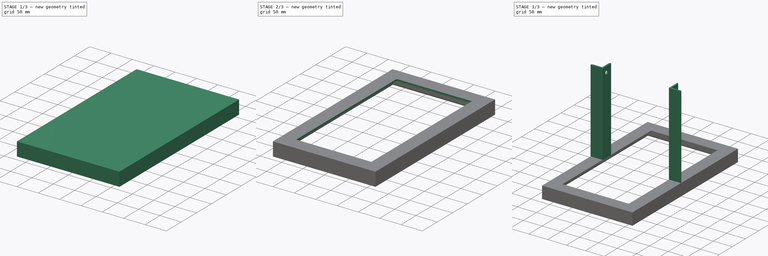
[diagram: build sequence overview — one tinted view per stage of 3, left to right]
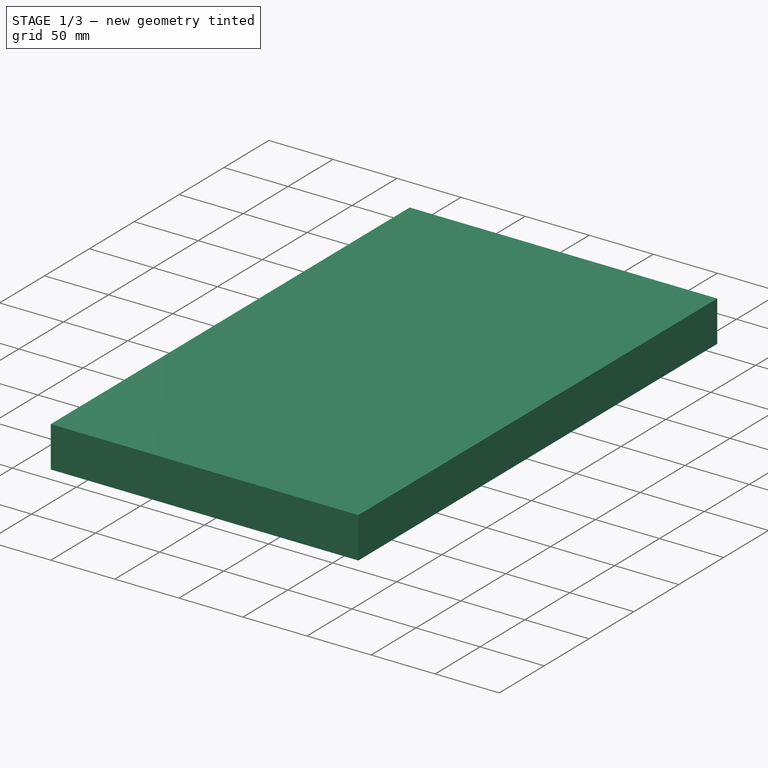
[diagram: stage 1 of 3 — iso view after this stage's code; geometry added in this stage tinted green]
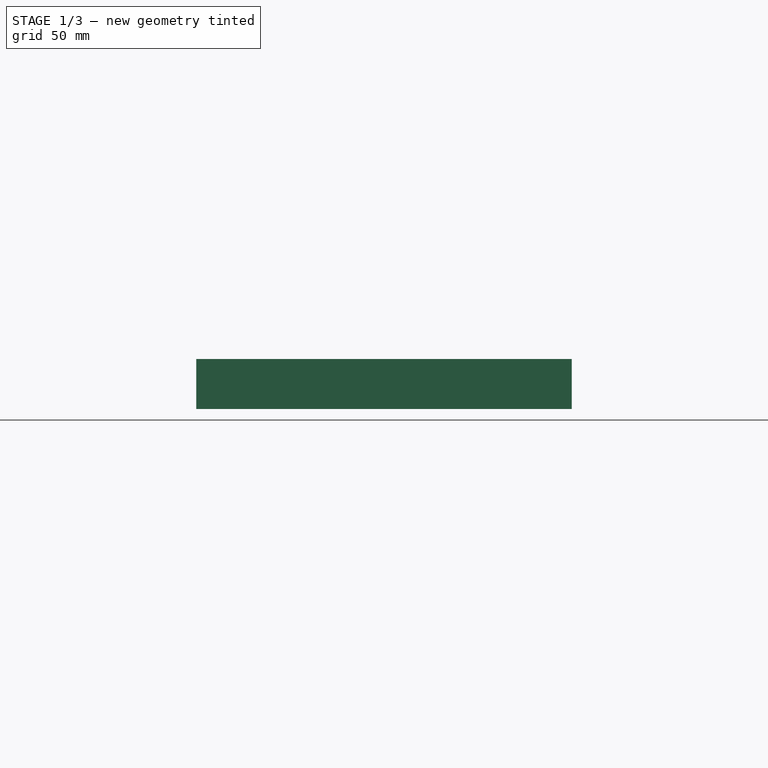
[diagram: stage 1 of 3 — front view after this stage's code; geometry added in this stage tinted green]
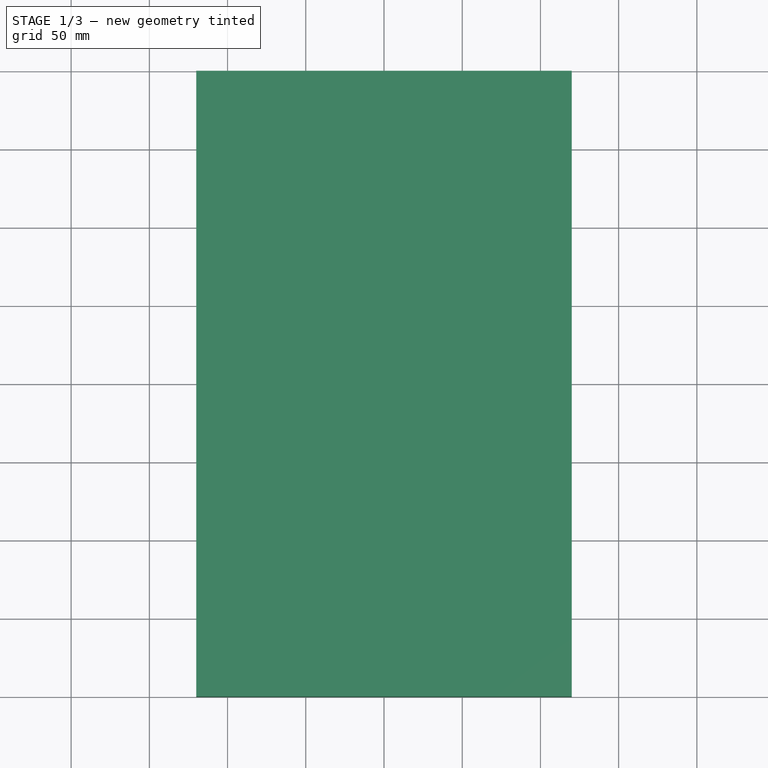
[diagram: stage 1 of 3 — top view after this stage's code; geometry added in this stage tinted green]
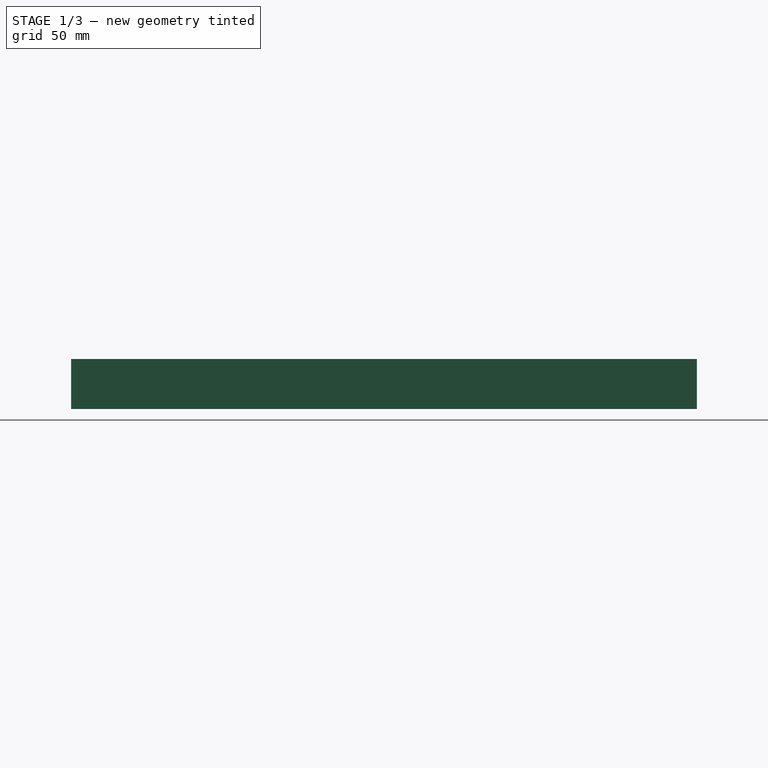
[diagram: stage 1 of 3 — right view after this stage's code; geometry added in this stage tinted green]
FCSTD DOCUMENT  (FreeCAD 0.19R)
Label: stand
License: All rights reserved
LicenseURL: http://en.wikipedia.org/wiki/All_rights_reserved
objects: Sketcher::SketchObject×5, PartDesign::Pad×3, PartDesign::CoordinateSystem×3, PartDesign::Pocket×2, PartDesign::Body×1
note: 19 computed .brp shape members not serialized (recipe doc carries the construction recipe); baked Part::Feature solids carry a one-line shape summary decoded from their .brp

FEATURE [Sketcher::SketchObject] Sketch
  FullyConstrained = true
  MapMode = 5
  Placement = pos=(0,0,0) rot=(1,0,0;1.5708rad)
  Support = -> [XZ_Plane]
  sketch-geometry (8):
    g0: LineSegment StartX=-120 StartY=1.55e-14 StartZ=0 EndX=-120 EndY=32 EndZ=0
    g1: LineSegment StartX=-120 StartY=32 StartZ=0 EndX=120 EndY=32 EndZ=0
    g2: LineSegment StartX=120 StartY=32 StartZ=0 EndX=120 EndY=1.42e-14 EndZ=0
    g3: LineSegment StartX=-116 StartY=4 StartZ=0 EndX=-116 EndY=28 EndZ=0
    g4: LineSegment StartX=-116 StartY=28 StartZ=0 EndX=116 EndY=28 EndZ=0
    g5: LineSegment StartX=116 StartY=28 StartZ=0 EndX=116 EndY=4 EndZ=0
    g6: ArcOfCircle CenterX=-120 CenterY=4 CenterZ=0 NormalX=0 NormalY=0 NormalZ=1 AngleXU=0 Radius=4 StartAngle=4.71239 EndAngle=6.28319
    g7: ArcOfCircle CenterX=120 CenterY=4 CenterZ=0 NormalX=0 NormalY=0 NormalZ=1 AngleXU=0 Radius=4 StartAngle=3.14159 EndAngle=4.71239
  constraints (25):
    c: PointOnObject(g0,g-1)
    c: Vertical(g0)
    c: Coincident(g1,g0)
    c: Horizontal(g1)
    c: Coincident(g2,g1)
    c: Vertical(g2)
    c: DistanceY(g0,g0) = 32
    c: DistanceX(g1,g1) = 240
    c: Symmetric(g2,g0,g-2)
    c: Vertical(g3)
    c: Coincident(g4,g3)
    c: Horizontal(g4)
    c: Coincident(g5,g4)
    c: Vertical(g5)
    c: DistanceX(g0,g3) = 4
    c: DistanceY(g3,g0) = 4
    c: DistanceX(g5,g2) = 4
    c: DistanceY(g3,g3) = 24
    c: Equal(g3,g5)
    c: PointOnObject(g6,g0)
    c: Coincident(g6,g3)
    c: Coincident(g6,g0)
    c: PointOnObject(g7,g2)
    c: Coincident(g7,g5)
    c: Coincident(g7,g2)
FEATURE [PartDesign::Pad] Pad
  Direction = (1,1,1)
  Length = 400
  Length2 = 100
  Placement = pos=(0,0,0) rot=(1,0,0;1.5708rad)
  Profile = -> Sketch
  Type = 0
FEATURE [Sketcher::SketchObject] Sketch001
  ExternalGeometry = -> [Pad]
  FullyConstrained = true
  MapMode = 5
  Placement = pos=(120,0,0) rot=(0.707107,0,0.707107;3.14159rad)
  Support = -> [Pad]
  sketch-geometry (8):
    g0: LineSegment StartX=32 StartY=400 StartZ=0 EndX=1.776e-13 EndY=400 EndZ=0
    g1: LineSegment StartX=4 StartY=396 StartZ=0 EndX=32 EndY=396 EndZ=0
    g2: LineSegment StartX=0 StartY=-1.3e-15 StartZ=0 EndX=32 EndY=0 EndZ=0
    g3: LineSegment StartX=4 StartY=4 StartZ=0 EndX=32 EndY=4 EndZ=0
    g4: LineSegment StartX=32 StartY=0 StartZ=0 EndX=32 EndY=4 EndZ=0
    g5: ArcOfCircle CenterX=4 CenterY=0 CenterZ=0 NormalX=0 NormalY=0 NormalZ=1 AngleXU=0 Radius=4 StartAngle=1.5708 EndAngle=3.14159
    g6: ArcOfCircle CenterX=4 CenterY=400 CenterZ=0 NormalX=0 NormalY=0 NormalZ=1 AngleXU=0 Radius=4 StartAngle=3.14159 EndAngle=4.71239
    g7: LineSegment StartX=32 StartY=396 StartZ=0 EndX=32 EndY=400 EndZ=0
  constraints (22):
    c: Coincident(g0,g-4)
    c: Coincident(g0,g-4)
    c: Horizontal(g1)
    c: DistanceY(g1,g0) = 4
    c: DistanceX(g1,g1) = 28
    c: Coincident(g2,g-1)
    c: Coincident(g2,g-3)
    c: Horizontal(g3)
    c: DistanceX(g3,g3) = 28
    c: DistanceY(g2,g3) = 4
    c: PointOnObject(g3,g-5)
    c: Coincident(g4,g2)
    c: Coincident(g4,g3)
    c: PointOnObject(g5,g2)
    c: Coincident(g5,g3)
    c: Coincident(g5,g2)
    c: PointOnObject(g1,g-5)
    c: PointOnObject(g6,g0)
    c: Coincident(g6,g1)
    c: Coincident(g6,g0)
    c: Coincident(g7,g1)
    c: Coincident(g7,g0)
FEATURE [PartDesign::Pad] Pad001
  BaseFeature = -> Pad
  Direction = (1,1,1)
  Length = 240
  Length2 = 100
  Placement = pos=(0,0,0) rot=(1,0,0;1.5708rad)
  Profile = -> Sketch001
  Reversed = true
  Type = 0
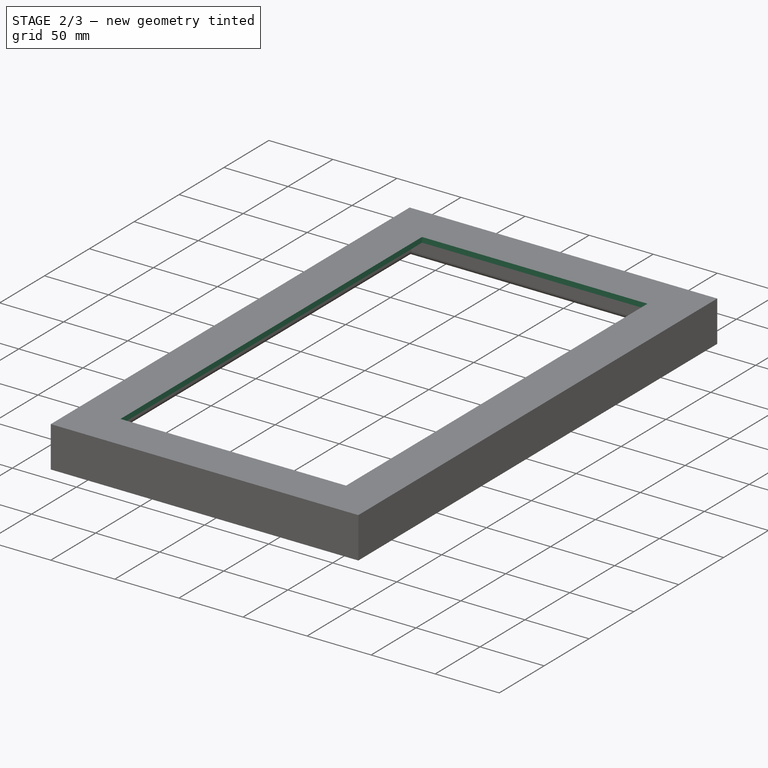
[diagram: stage 2 of 3 — iso view after this stage's code; geometry added in this stage tinted green]
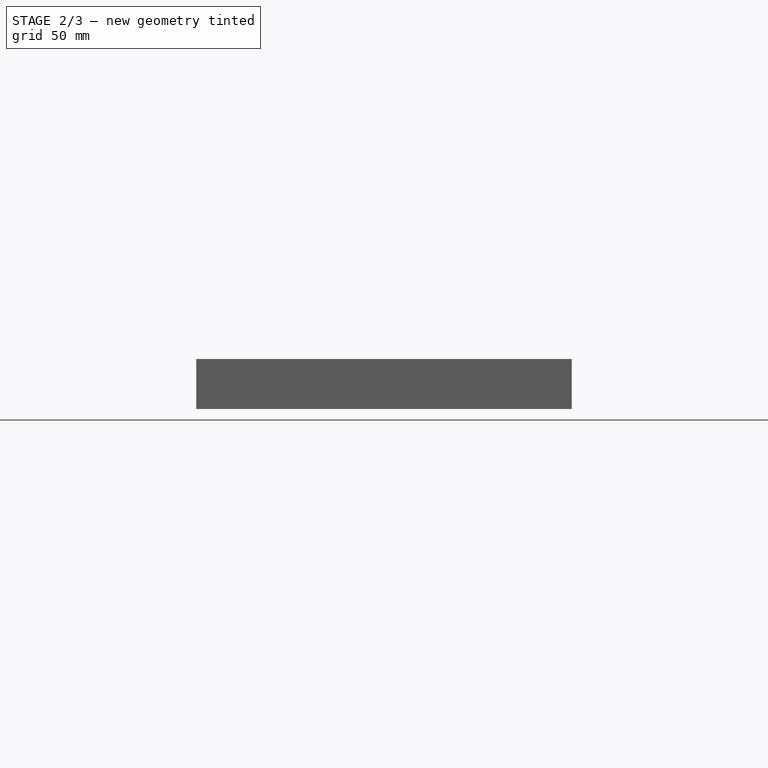
[diagram: stage 2 of 3 — front view after this stage's code; geometry added in this stage tinted green]
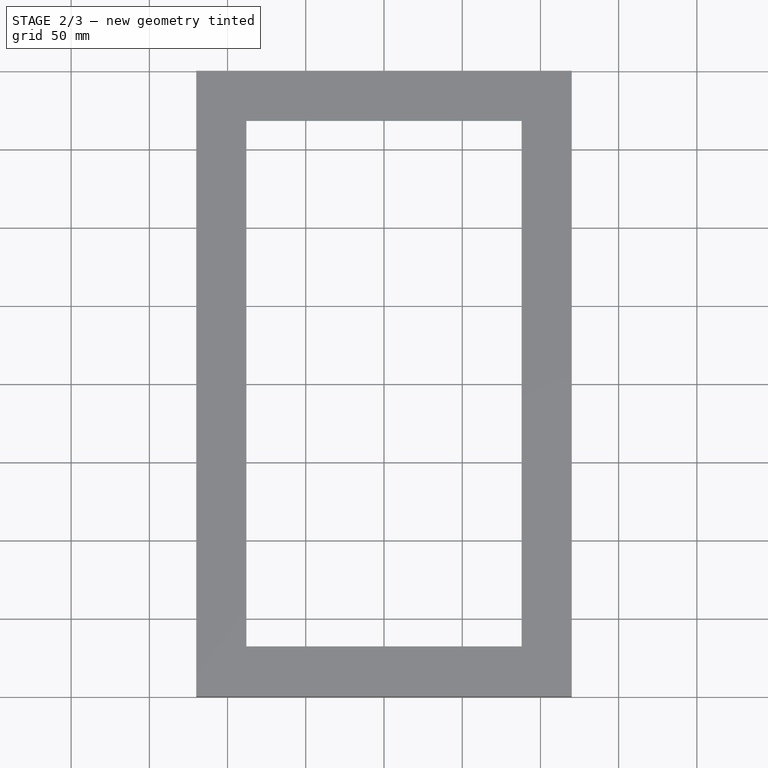
[diagram: stage 2 of 3 — top view after this stage's code; geometry added in this stage tinted green]
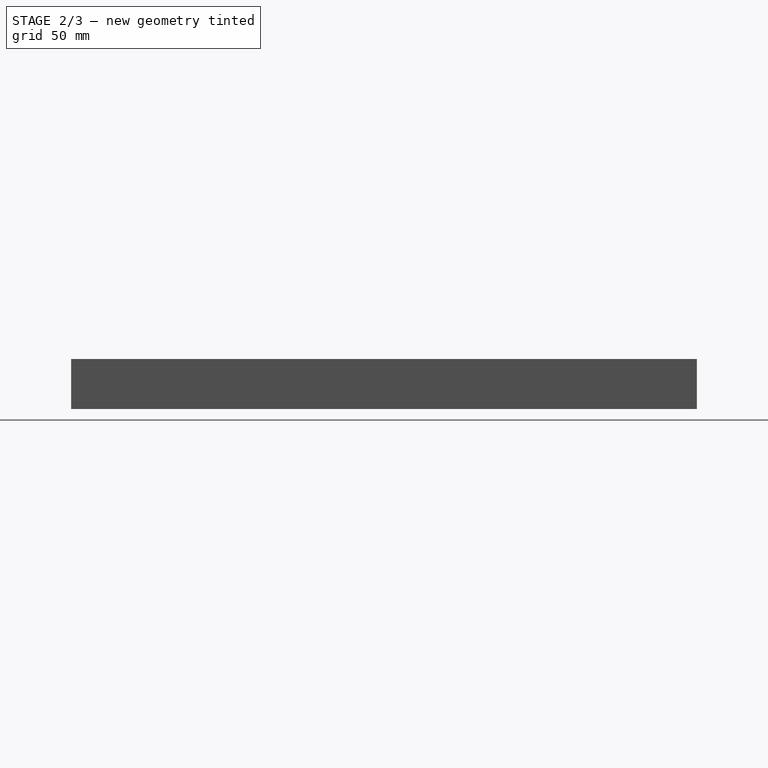
[diagram: stage 2 of 3 — right view after this stage's code; geometry added in this stage tinted green]
FEATURE [Sketcher::SketchObject] Sketch002
  ExternalGeometry = -> [Pad001]
  FullyConstrained = true
  MapMode = 5
  Placement = pos=(0,0,32) rot=(0,0,1;3.14159rad)
  Support = -> [Pad001]
  sketch-geometry (4):
    g0: LineSegment StartX=88 StartY=32 StartZ=0 EndX=-88 EndY=32 EndZ=0
    g1: LineSegment StartX=-88 StartY=32 StartZ=0 EndX=-88 EndY=368 EndZ=0
    g2: LineSegment StartX=-88 StartY=368 StartZ=0 EndX=88 EndY=368 EndZ=0
    g3: LineSegment StartX=88 StartY=368 StartZ=0 EndX=88 EndY=32 EndZ=0
  constraints (12):
    c: Coincident(g0,g1)
    c: Coincident(g1,g2)
    c: Coincident(g2,g3)
    c: Coincident(g3,g0)
    c: Horizontal(g0)
    c: Horizontal(g2)
    c: Vertical(g1)
    c: Vertical(g3)
    c: DistanceX(g2,g-4) = 32
    c: DistanceY(g2,g-4) = 32
    c: DistanceX(g-3,g0) = 32
    c: DistanceY(g-3,g0) = 32
FEATURE [PartDesign::Pocket] Pocket
  BaseFeature = -> Pad001
  Length = 5
  Length2 = 100
  Placement = pos=(0,0,0) rot=(1,0,0;1.5708rad)
  Profile = -> Sketch002
  Type = 1
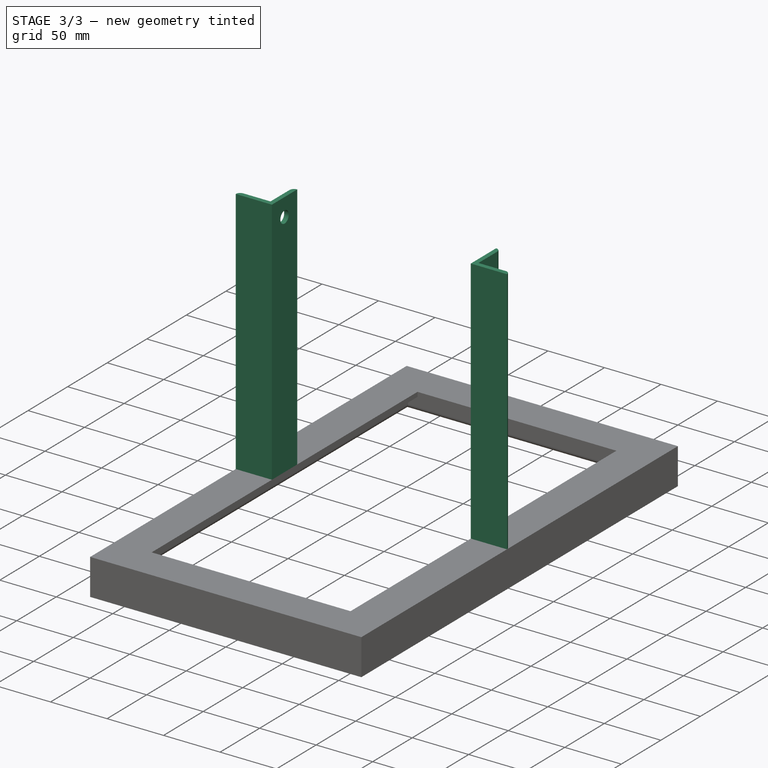
[diagram: stage 3 of 3 — iso view after this stage's code; geometry added in this stage tinted green]
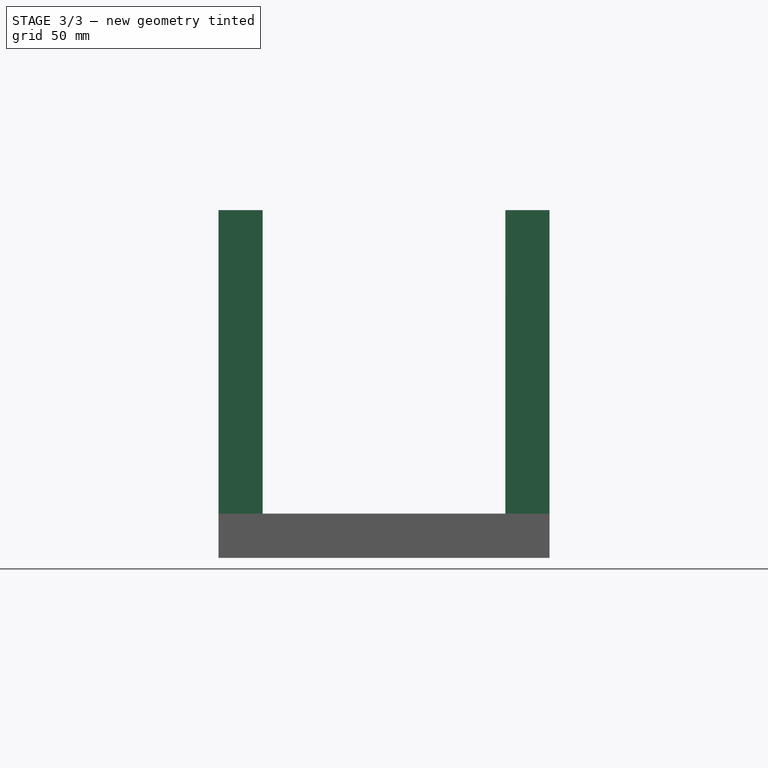
[diagram: stage 3 of 3 — front view after this stage's code; geometry added in this stage tinted green]
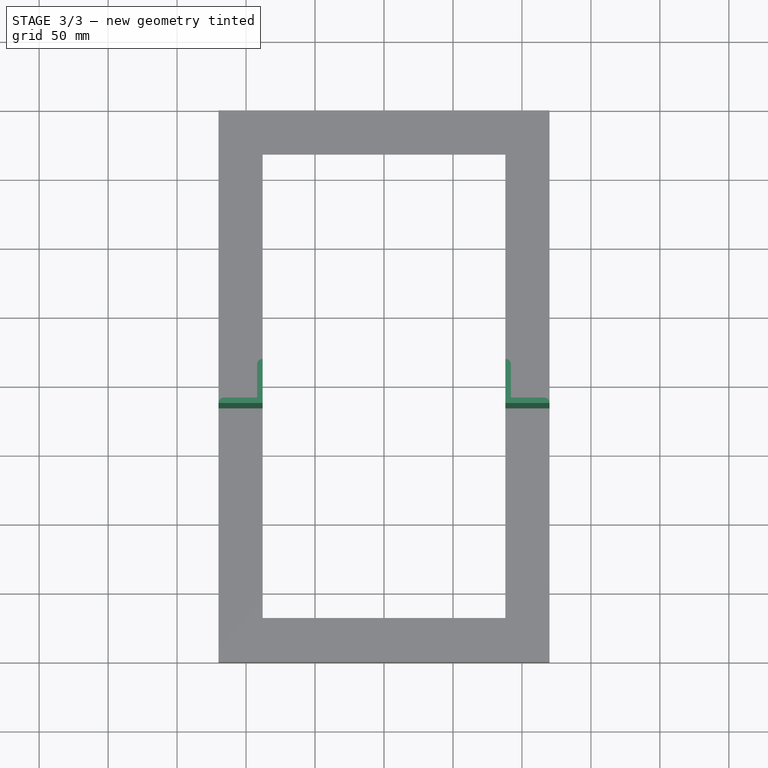
[diagram: stage 3 of 3 — top view after this stage's code; geometry added in this stage tinted green]
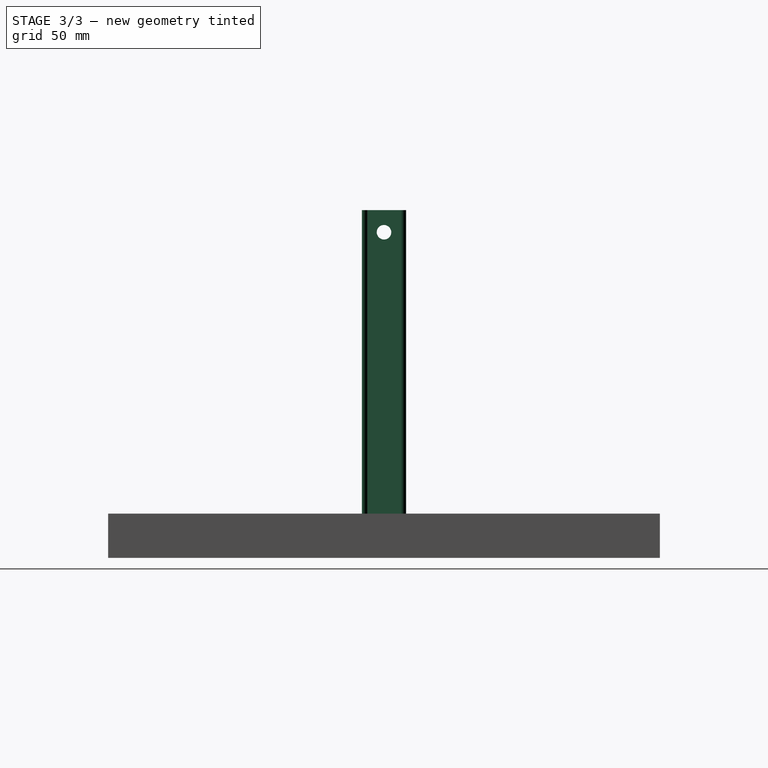
[diagram: stage 3 of 3 — right view after this stage's code; geometry added in this stage tinted green]
FEATURE [Sketcher::SketchObject] Sketch003
  ExternalGeometry = -> [Pocket]
  FullyConstrained = true
  MapMode = 5
  Placement = pos=(0,0,32) rot=(0,0,1;3.14159rad)
  Support = -> [Pocket]
  sketch-geometry (12):
    g0: LineSegment StartX=88 StartY=216 StartZ=0 EndX=88 EndY=184 EndZ=0
    g1: LineSegment StartX=88 StartY=216 StartZ=0 EndX=120 EndY=216 EndZ=0
    g2: LineSegment StartX=-88 StartY=216 StartZ=0 EndX=-120 EndY=216 EndZ=0
    g3: LineSegment StartX=-88 StartY=216 StartZ=0 EndX=-88 EndY=184 EndZ=0
    g4: LineSegment StartX=-116 StartY=212 StartZ=0 EndX=-92 EndY=212 EndZ=0
    g5: LineSegment StartX=-92 StartY=212 StartZ=0 EndX=-92 EndY=188 EndZ=0
    g6: LineSegment StartX=116 StartY=212 StartZ=0 EndX=92 EndY=212 EndZ=0
    g7: LineSegment StartX=92 StartY=212 StartZ=0 EndX=92 EndY=188 EndZ=0
    g8: ArcOfCircle CenterX=-116 CenterY=216 CenterZ=0 NormalX=0 NormalY=0 NormalZ=1 AngleXU=0 Radius=4 StartAngle=3.14159 EndAngle=4.71239
    g9: ArcOfCircle CenterX=-88 CenterY=188 CenterZ=0 NormalX=0 NormalY=0 NormalZ=1 AngleXU=0 Radius=4 StartAngle=3.14159 EndAngle=4.71239
    g10: ArcOfCircle CenterX=88 CenterY=188 CenterZ=0 NormalX=0 NormalY=0 NormalZ=1 AngleXU=0 Radius=4 StartAngle=4.71239 EndAngle=6.28319
    g11: ArcOfCircle CenterX=116 CenterY=216 CenterZ=0 NormalX=0 NormalY=0 NormalZ=1 AngleXU=0 Radius=4 StartAngle=4.71239 EndAngle=6.28319
  constraints (38):
    c: Vertical(g0)
    c: Coincident(g1,g0)
    c: Horizontal(g1)
    c: Horizontal(g2)
    c: Coincident(g3,g2)
    c: Vertical(g3)
    c: Equal(g3,g0)
    c: Equal(g0,g1)
    c: Equal(g1,g2)
    c: DistanceX(g2,g2) = 32
    c: Symmetric(g2,g0,g-2)
    c: Horizontal(g4)
    c: Coincident(g5,g4)
    c: Vertical(g5)
    c: Horizontal(g6)
    c: Coincident(g7,g6)
    c: Vertical(g7)
    c: Equal(g6,g7)
    c: Equal(g7,g5)
    c: Equal(g5,g4)
    c: DistanceX(g4,g4) = 24
    c: DistanceY(g4,g2) = 4
    c: Symmetric(g4,g6,g-2)
    c: DistanceX(g4,g2) = 4
    c: PointOnObject(g8,g2)
    c: Coincident(g8,g4)
    c: Coincident(g8,g2)
    c: PointOnObject(g9,g3)
    c: Coincident(g9,g5)
    c: Coincident(g9,g3)
    c: PointOnObject(g10,g0)
    c: Coincident(g10,g7)
    c: Coincident(g10,g0)
    c: PointOnObject(g11,g1)
    c: Coincident(g11,g6)
    c: Coincident(g11,g1)
    c: PointOnObject(g2,g-3)
    c: DistanceY(g2,g-4) = 184
FEATURE [PartDesign::Pad] Pad002
  BaseFeature = -> Pocket
  Direction = (1,1,1)
  Length = 220
  Length2 = 100
  Placement = pos=(0,0,0) rot=(1,0,0;1.5708rad)
  Profile = -> Sketch003
  Type = 0
FEATURE [Sketcher::SketchObject] Sketch004
  ExternalGeometry = -> [Pad002]
  FullyConstrained = true
  MapMode = 5
  Placement = pos=(92,0,0) rot=(0.707107,0,0.707107;3.14159rad)
  Support = -> [Pad002]
  sketch-geometry (1):
    g0: Circle CenterX=236 CenterY=200 CenterZ=0 NormalX=0 NormalY=0 NormalZ=1 AngleXU=0 Radius=5.25
  constraints (3):
    c: Diameter(g0) = 10.5
    c: DistanceX(g0,g-3) = 16
    c: DistanceY(g0,g-3) = 16
FEATURE [PartDesign::Pocket] Pocket001
  BaseFeature = -> Pad002
  Length = 5
  Length2 = 100
  Placement = pos=(0,0,0) rot=(1,0,0;1.5708rad)
  Profile = -> Sketch004
  Type = 1
FEATURE [PartDesign::CoordinateSystem] LCS_hole
  AttacherType = Attacher::AttachEngine3D
  MapMode = 11
  Placement = pos=(-88,-200,236) rot=(0.57735,-0.57735,0.57735;4.18879rad)
  Support = -> [Pocket001]
FEATURE [PartDesign::CoordinateSystem] LCS_sh1
  AttacherType = Attacher::AttachEngine3D
  MapMode = 11
  Placement = pos=(92,-200,236) rot=(0.57735,-0.57735,0.57735;4.18879rad)
  Support = -> [Pocket001]
FEATURE [PartDesign::CoordinateSystem] LCS_sh2
  AttacherType = Attacher::AttachEngine3D
  MapMode = 11
  Placement = pos=(-92,-200,236) rot=(0.57735,-0.57735,0.57735;4.18879rad)
  Support = -> [Pocket001]
FEATURE [PartDesign::Body] Body
  Group = -> [Sketch,Pad,Sketch001,Pad001,Sketch002,Pocket,Sketch003,Pad002,Sketch004,Pocket001,LCS_hole,LCS_sh1,LCS_sh2]
  Origin = -> Origin
  Tip = -> Pocket001
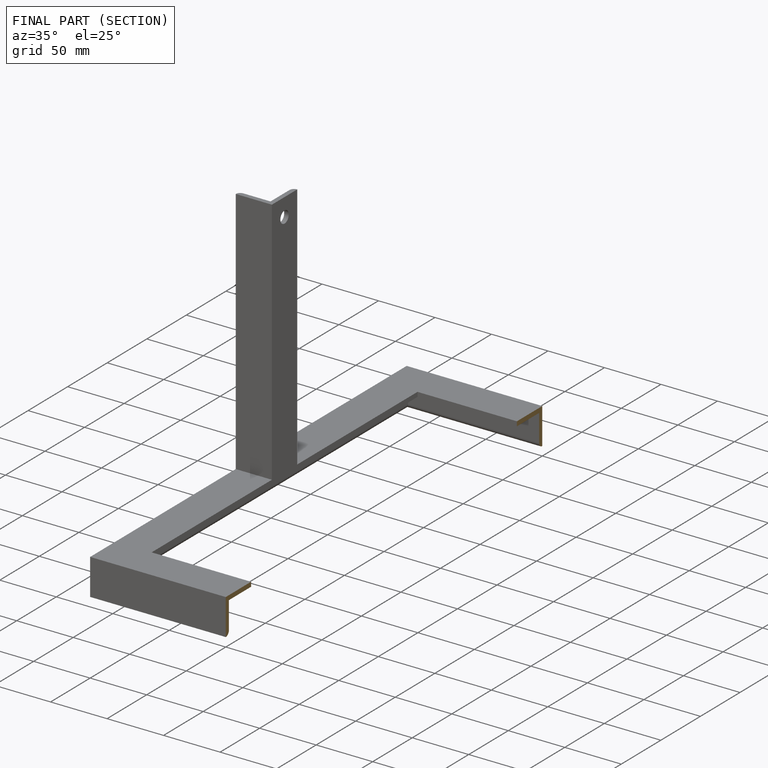
[diagram: finished part — half-section view (interior)]
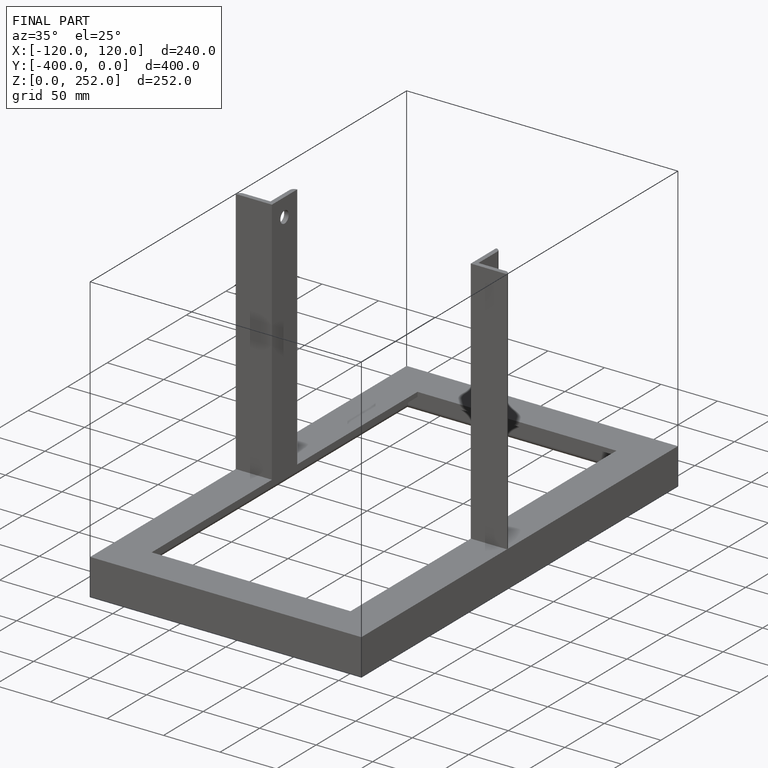
[diagram: finished part — iso view with bounding-box wireframe]
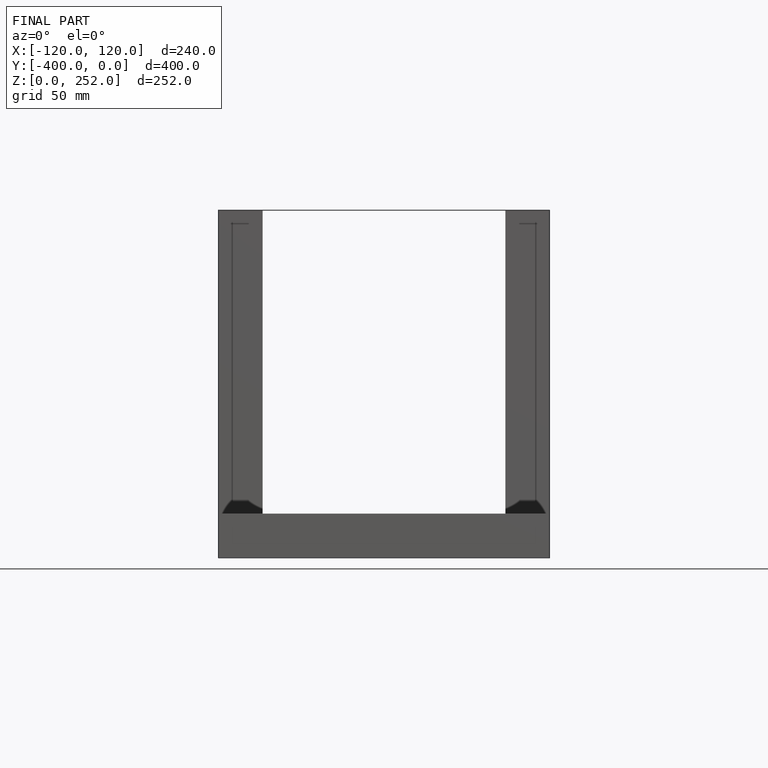
[diagram: finished part — front view with bounding-box wireframe]
